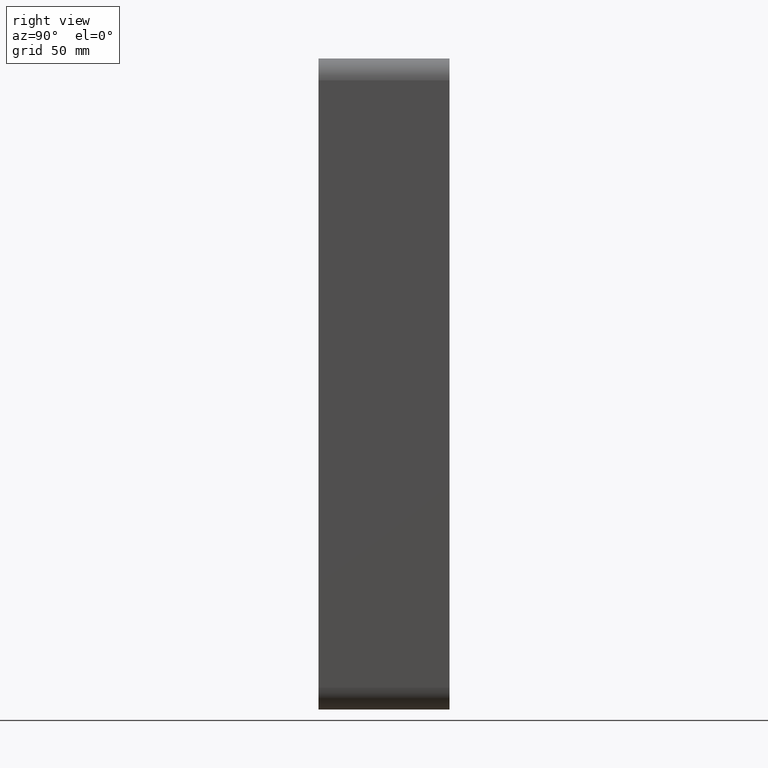
[diagram: clean part render]
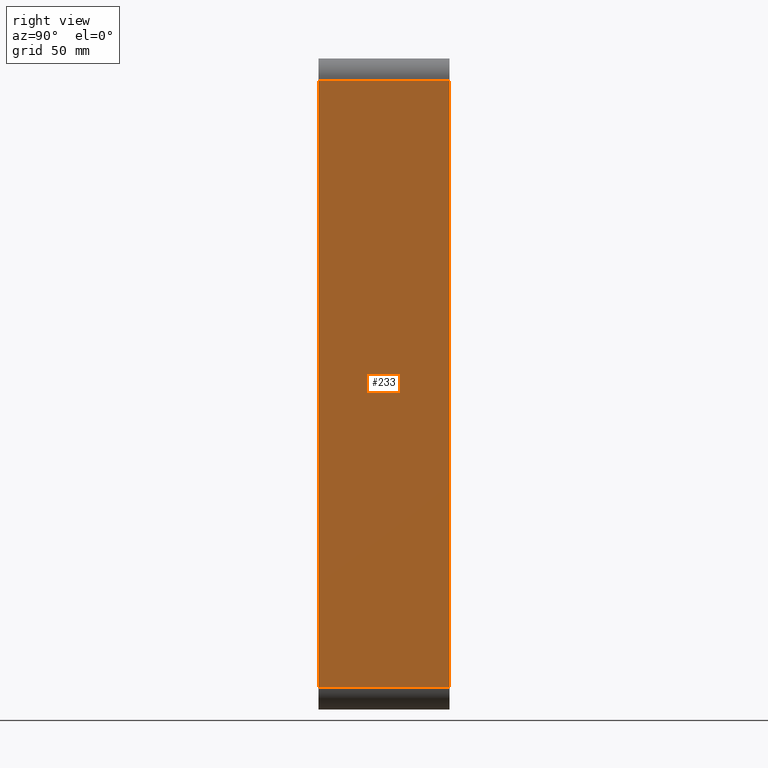
[diagram: same view with one face highlighted and labeled with its STEP entity id]
A machine part, right view. The second image highlights one B-rep face of the part: STEP entity #233.
In plain terms, the highlighted planar face has unit normal (1, 0, 0).
Its self-contained STEP definition (entity closure, byte-faithful):
#75=CARTESIAN_POINT('',(70.25,57.0,-139.00000000000003));
#76=VERTEX_POINT('',#75);
#84=CARTESIAN_POINT('',(70.25,-3.0,-139.00000000000003));
#85=VERTEX_POINT('',#84);
#86=CARTESIAN_POINT('',(70.25,57.0,-139.00000000000003));
#87=DIRECTION('',(0.0,-1.0,0.0));
#88=VECTOR('',#87,60.0);
#89=LINE('',#86,#88);
#90=EDGE_CURVE('',#76,#85,#89,.T.);
#116=CARTESIAN_POINT('',(70.25,-3.0,139.0));
#117=VERTEX_POINT('',#116);
#118=CARTESIAN_POINT('',(70.25,-3.0,-139.0));
#119=DIRECTION('',(0.0,0.0,1.0));
#120=VECTOR('',#119,278.0);
#121=LINE('',#118,#120);
#122=EDGE_CURVE('',#85,#117,#121,.T.);
#210=CARTESIAN_POINT('',(70.25,0.0,149.0));
#211=DIRECTION('',(1.0,0.0,0.0));
#212=DIRECTION('',(0.0,0.0,-1.0));
#213=AXIS2_PLACEMENT_3D('',#210,#211,#212);
#214=PLANE('',#213);
#215=ORIENTED_EDGE('',*,*,#90,.F.);
#216=CARTESIAN_POINT('',(70.25,57.0,139.0));
#217=VERTEX_POINT('',#216);
#218=CARTESIAN_POINT('',(70.25,57.0,139.0));
#219=DIRECTION('',(0.0,0.0,-1.0));
#220=VECTOR('',#219,278.0);
#221=LINE('',#218,#220);
#222=EDGE_CURVE('',#217,#76,#221,.T.);
#223=ORIENTED_EDGE('',*,*,#222,.F.);
#224=CARTESIAN_POINT('',(70.25,-3.0,139.0));
#225=DIRECTION('',(0.0,1.0,0.0));
#226=VECTOR('',#225,60.0);
#227=LINE('',#224,#226);
#228=EDGE_CURVE('',#117,#217,#227,.T.);
#229=ORIENTED_EDGE('',*,*,#228,.F.);
#230=ORIENTED_EDGE('',*,*,#122,.F.);
#231=EDGE_LOOP('',(#215,#223,#229,#230));
#232=FACE_OUTER_BOUND('',#231,.T.);
#233=ADVANCED_FACE('',(#232),#214,.T.);